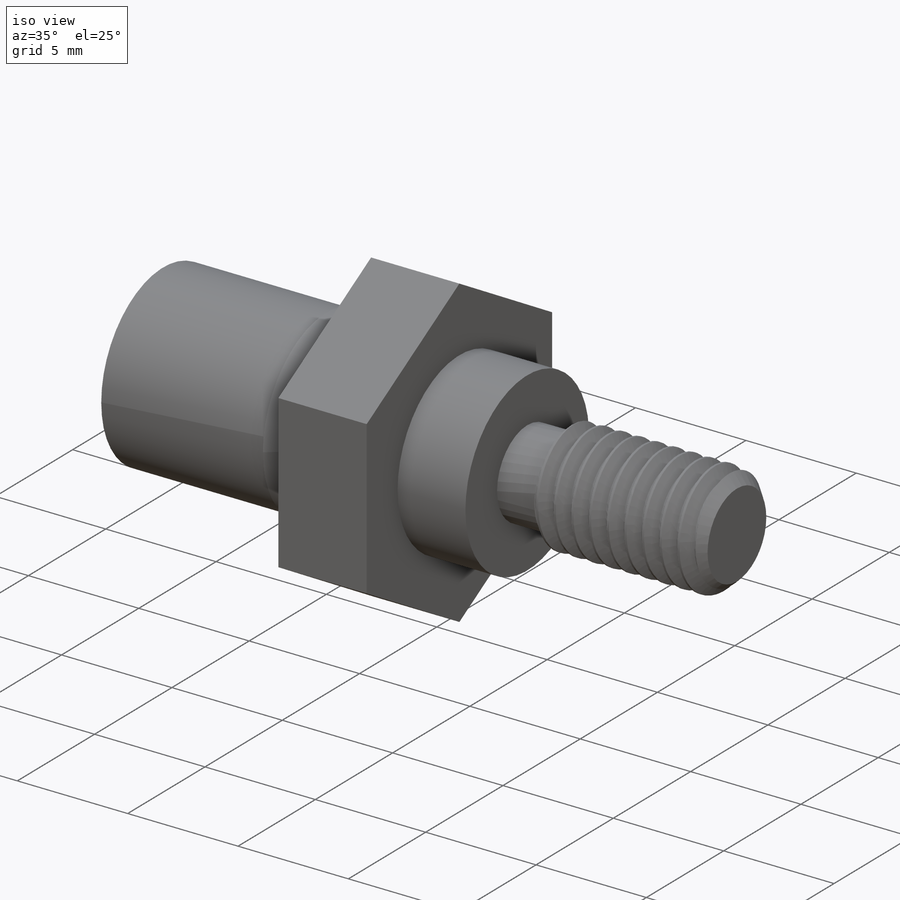
[diagram: iso view]
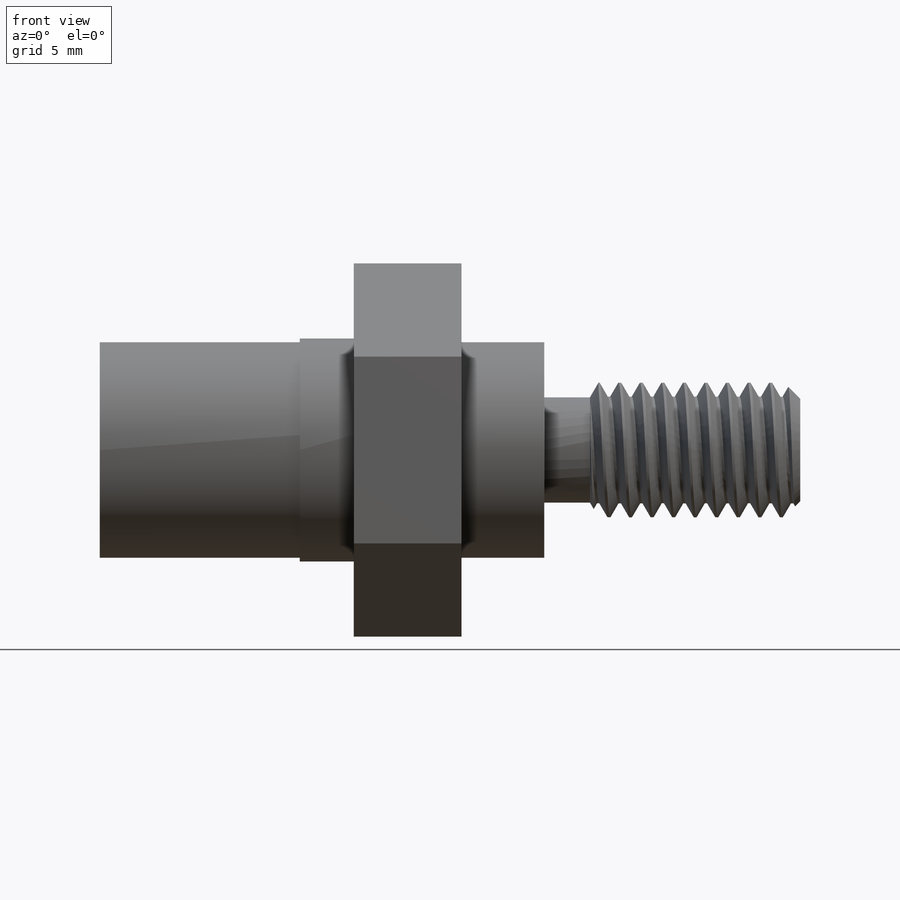
[diagram: front view]
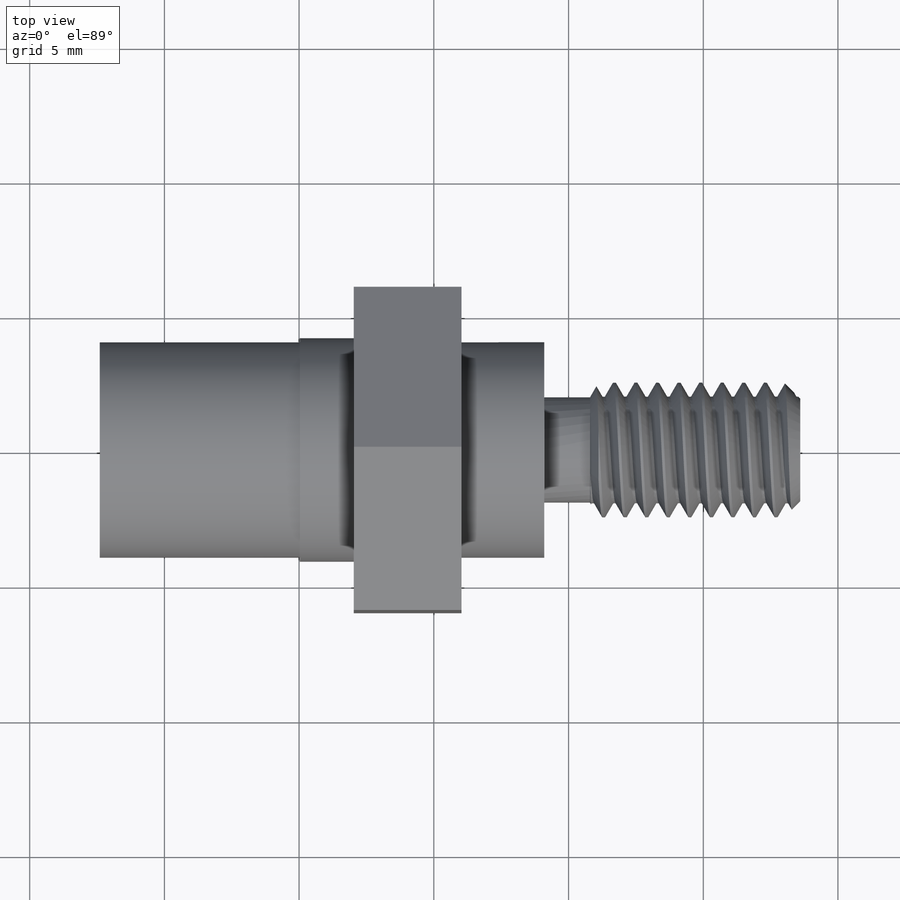
[diagram: top view]
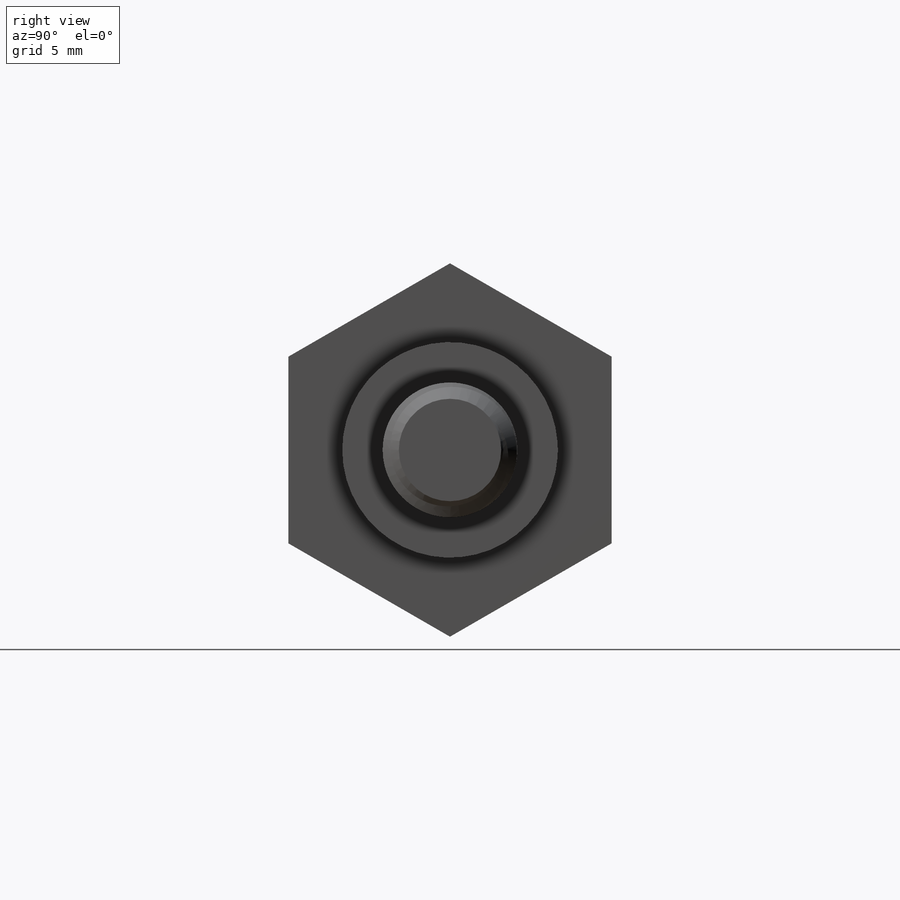
[diagram: right view]
SOLIDWORKS PART (.sldprt)
format: sldprt  version: not decoded by parser v0  size: 1,059,328 bytes
history: native  units: mm
features: sketch x16, cut_extrude x6, plane x2, extrude x2, helix x2, sweep x2, cut_revolve x2, material x1, chamfer x1, boolean_combine x1 (+11 scaffold rows collapsed)
feature tree (46):
  scaffold x11  (default folders/planes/origin — collapsed)
  material  "AISI 304"
  sketch  "Sketch1"  dims[A=19.1mm Hex=13.0mm Female Thread Length=11.1mm Male thread Length=9.5mm Male Dia=5.0mm Female Dia=6.0mm D1=4.0mm]
  plane  "Plane1"
  sketch  "Sketch2"
  extrude  "Extrude1"  [1 undecoded]
  sketch  "Sketch3"
  cut_extrude  "Extrude3"  [1 undecoded]
  sketch  "Sketch8"  dims[D1=0.0mm]
  helix  "Helix/Spiral1"  Pitch=13.1mm Female Pitch=1mm
  sketch  "Sketch9"  dims[c1.D1=~2.833303mm c2.D1=60.0deg c2.D2=0.125mm c2.D3=0.5mm]
  sweep  "Sweep1"
  sketch  "Sketch10"  dims[D1=0.0mm]
  cut_extrude  "Extrude7"  [1 undecoded]
  sketch  "Sketch11"  dims[D1=0.0762mm]
  cut_extrude  "Extrude8"  [1 undecoded]
  sketch  "Sketch6"
  cut_extrude  "Extrude5"  [1 undecoded]
  sketch  "Sketch7"  dims[D1=0.0mm]
  cut_extrude  "Extrude6"  [1 undecoded]
  plane  "Plane2"
  sketch  "Sketch4"
  extrude  "Extrude4"  [1 undecoded]
  sketch  "Sketch12"  dims[D1=0.0mm]
  helix  "Helix/Spiral2"  Pitch=11.1mm Male Pitch=0.8mm
  sketch  "Sketch13"  dims[c1.D1=~2.840825mm c2.D1=60.0deg c2.D2=0.1mm c2.D3=0.4mm]
  chamfer  "Chamfer1"  Distance=0.6mm Angle=45deg
  sweep  "Cut-Sweep1"
  sketch  "Sketch14"  dims[c1.D1=~1.659866mm c2.D1=60.0deg c2.D2=~2.009876mm c2.D3=0.0254mm]
  cut_revolve  "Cut-Revolve1"  Angle=360deg
  boolean_combine  "Combine1"
  sketch  "Sketch15"
  sketch  "Sketch16"  dims[D1=12.0mm]
  cut_extrude  "Cut-Extrude2"  [1 undecoded]
  sketch  "Sketch17"  dims[D1=4.0mm D2=3.2mm D3=4.0mm D4=4.15mm D5=4.0mm D6=2.0mm D7=2.0mm D8=8.5mm]
  cut_revolve  "Cut-Revolve2"  Angle=360deg
decode coverage: 16 of 32 modeling features carry decoded parameters
note: ~ marks probable driven/reference dimensions
note: 8 parameter values undecoded
summary: no parameter record found for 8 features
note: suppression state not decoded; provenance and decode notes live in map.json
